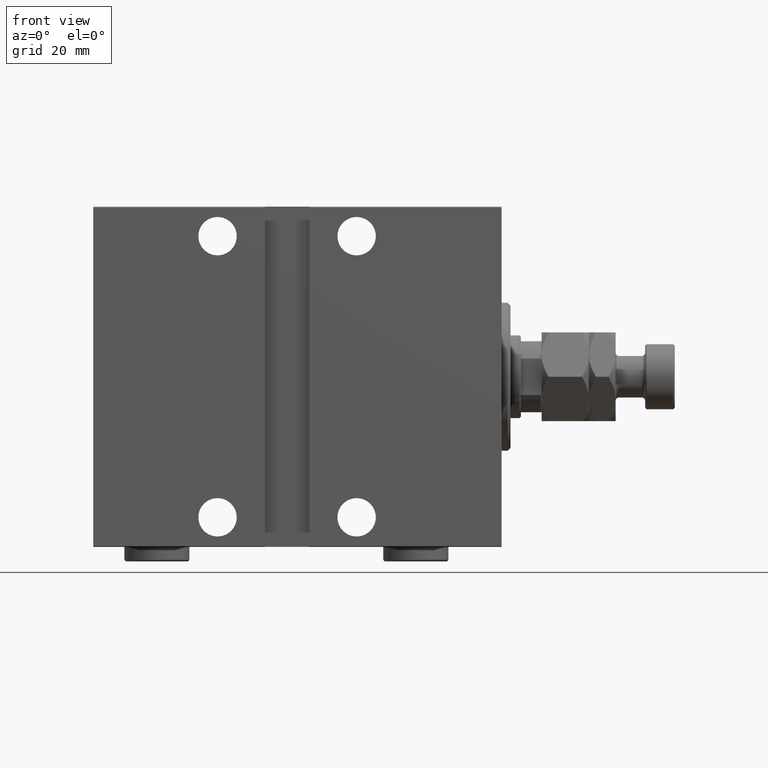
[diagram: clean part render]
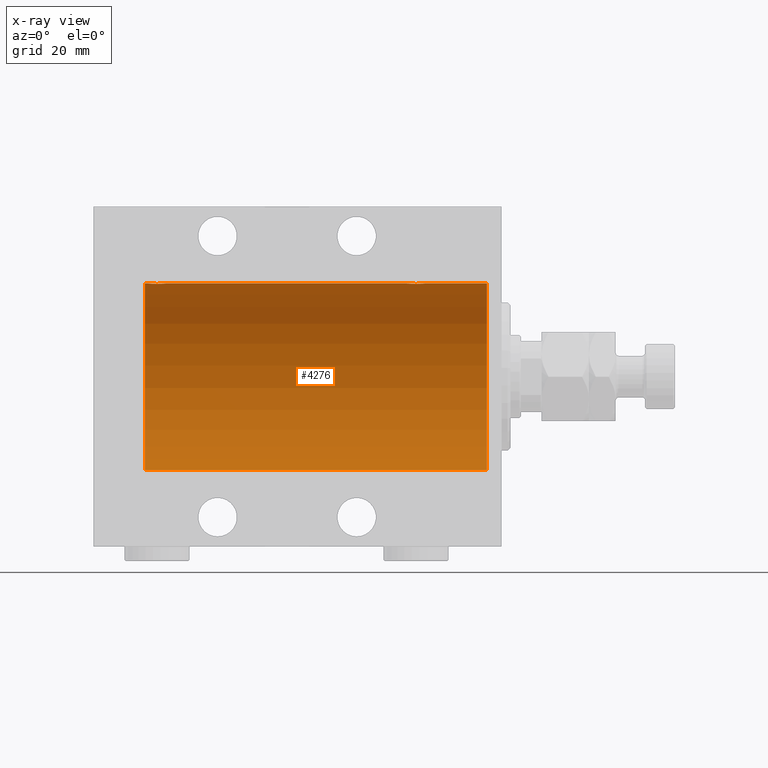
[diagram: x-ray — body ghosted, one internal face saturated and labeled with its STEP entity id]
A machine part, front view, then the same camera in x-ray: the body is ghosted and one INTERNAL B-rep face — a face not visible from any outside direction — is saturated and labeled: STEP entity #4276.
In plain terms, the highlighted cylindrical surface (partial cylindrical patch) has radius 31.5 mm, axis along (1, 0, -0).
Its self-contained STEP definition (entity closure, byte-faithful):
#874 = CARTESIAN_POINT ( 'NONE',  ( 120.5000000000000000, 3.857637417314162689E-15, -31.50000000000000000 ) ) ;
#1224 = CARTESIAN_POINT ( 'NONE',  ( 118.4814346287304687, -2.261012035264788445, 31.41905495618427935 ) ) ;
#1467 = CARTESIAN_POINT ( 'NONE',  ( 118.0009815629614849, -2.604888532024803194, 31.39229907792057972 ) ) ;
#1693 = CARTESIAN_POINT ( 'NONE',  ( 119.1019214043915895, -1.506272792558331464, 31.46439306106695710 ) ) ;
#1937 = CARTESIAN_POINT ( 'NONE',  ( 113.5000000000000284, -0.1958045626907475578, 31.50000000000000000 ) ) ;
#2501 = CARTESIAN_POINT ( 'NONE',  ( 26.30285761163299441, -1.328004386210307919, 31.47251238182140298 ) ) ;
#2833 = LINE ( 'NONE', #27963, #26604 ) ;
#2972 = CARTESIAN_POINT ( 'NONE',  ( 30.32865414687508832, -2.696917666262911961, 31.38442820068732075 ) ) ;
#3433 = CARTESIAN_POINT ( 'NONE',  ( 26.00000000000000355, -0.1958045626907478631, 31.50000000000000000 ) ) ;
#4080 = CARTESIAN_POINT ( 'NONE',  ( 26.00000000000000355, -2.117263226567934635E-23, 31.50000000000000000 ) ) ;
#4127 = CARTESIAN_POINT ( 'NONE',  ( 120.5000000000000000, 0.000000000000000000, 31.50000000000000000 ) ) ;
#4192 = CARTESIAN_POINT ( 'NONE',  ( 120.5000000000000000, 0.000000000000000000, 0.000000000000000000 ) ) ;
#4276 = ADVANCED_FACE ( 'NONE', ( #20348 ), #12448, .F. ) ;
#4513 = ORIENTED_EDGE ( 'NONE', *, *, #15030, .F. ) ;
#4722 = CARTESIAN_POINT ( 'NONE',  ( 117.8286541468751238, -2.696917666262918623, 31.38442820068732075 ) ) ;
#4948 = CARTESIAN_POINT ( 'NONE',  ( 114.6695630851300081, -2.384935707362453527, 31.40977595730572958 ) ) ;
#5190 = CARTESIAN_POINT ( 'NONE',  ( 116.6958229443943935, -3.000152387858501690, 31.35680286115500337 ) ) ;
#5420 = CARTESIAN_POINT ( 'NONE',  ( 118.8824687226663457, -1.833765390051049549, 31.44700610425690002 ) ) ;
#5437 = ORIENTED_EDGE ( 'NONE', *, *, #38143, .F. ) ;
#5664 = CARTESIAN_POINT ( 'NONE',  ( 113.5958054926194336, -0.7775502215293890185, 31.49099686045558144 ) ) ;
#6232 = CARTESIAN_POINT ( 'NONE',  ( 29.19582294439440062, -3.000152387858491476, 31.35680286115500337 ) ) ;
#6343 = VERTEX_POINT ( 'NONE', #19599 ) ;
#6456 = CARTESIAN_POINT ( 'NONE',  ( 26.01898490608483527, -0.3904857149112059278, 31.49817436802766224 ) ) ;
#6702 = CARTESIAN_POINT ( 'NONE',  ( 29.96515729810639783, -2.847307171789040581, 31.37114183851420890 ) ) ;
#6929 = CARTESIAN_POINT ( 'NONE',  ( 32.00000000000000000, -0.3965830985361757932, 31.50000000000000711 ) ) ;
#7260 = DIRECTION ( 'NONE',  ( -1.000000000000000000, -0.000000000000000000, -0.000000000000000000 ) ) ;
#7789 = EDGE_CURVE ( 'NONE', #35003, #6343, #32323, .T. ) ;
#8006 = AXIS2_PLACEMENT_3D ( 'NONE', #4192, #28431, #21211 ) ;
#8224 = CARTESIAN_POINT ( 'NONE',  ( 115.1676004190084086, -2.695056442718549050, 31.38458855656186941 ) ) ;
#8447 = CARTESIAN_POINT ( 'NONE',  ( 119.5000000000000284, 3.986776180743416568E-16, 31.50000000000000000 ) ) ;
#8722 = CIRCLE ( 'NONE', #8006, 31.50000000000000000 ) ;
#8882 = CARTESIAN_POINT ( 'NONE',  ( 32.00000000000000000, -2.212280765433387153E-16, 31.50000000000000000 ) ) ;
#8939 = VECTOR ( 'NONE', #11144, 1000.000000000000000 ) ;
#9144 = CARTESIAN_POINT ( 'NONE',  ( 119.1952964235901646, -1.331741824817668673, 31.47235367475394341 ) ) ;
#9181 = CARTESIAN_POINT ( 'NONE',  ( 120.5000000000000000, 0.000000000000000000, 0.000000000000000000 ) ) ;
#9736 = CARTESIAN_POINT ( 'NONE',  ( 27.01539640075336379, -2.258226318633789642, 31.41925597582827123 ) ) ;
#9810 = CARTESIAN_POINT ( 'NONE',  ( 120.5000000000000000, 0.000000000000000000, 31.50000000000000000 ) ) ;
#9907 = DIRECTION ( 'NONE',  ( -1.000000000000000000, -0.000000000000000000, -0.000000000000000000 ) ) ;
#10133 = CARTESIAN_POINT ( 'NONE',  ( 120.5000000000000000, 3.857637417314162689E-15, -31.50000000000000000 ) ) ;
#10187 = CARTESIAN_POINT ( 'NONE',  ( 28.03055544341478367, -2.845838211243338023, 31.37127560316188024 ) ) ;
#10434 = CARTESIAN_POINT ( 'NONE',  ( 31.92020662950041654, -0.7905881588836122242, 31.49214662150069088 ) ) ;
#11144 = DIRECTION ( 'NONE',  ( -1.000000000000000000, -0.000000000000000000, -0.000000000000000000 ) ) ;
#11685 = VERTEX_POINT ( 'NONE', #14129 ) ;
#12448 = CYLINDRICAL_SURFACE ( 'NONE', #16930, 31.50000000000000000 ) ;
#13940 = CARTESIAN_POINT ( 'NONE',  ( 29.77469094434372465, -2.904836261170110845, 31.36579955910872997 ) ) ;
#14129 = CARTESIAN_POINT ( 'NONE',  ( 5.000000000000004441, 0.000000000000000000, 31.50000000000000000 ) ) ;
#14443 = B_SPLINE_CURVE_WITH_KNOTS ( 'NONE', 3,
 ( #38240, #1937, #37572, #5664, #19877, #26589, #30091, #37097, #15456, #36851, #4948, #40570, #8224, #29646, #44534, #29872, #44301, #5190, #43854, #36631, #33378, #4722, #1467, #34063, #1224, #19410, #5420, #1693, #9144, #40813, #43609, #8447 ),
 .UNSPECIFIED., .F., .F.,
 ( 4, 2, 2, 2, 2, 2, 2, 2, 2, 2, 2, 2, 2, 2, 2, 4 ),
 ( 0.009384682587134656959, 0.009971088165454059654, 0.01055749374377346235, 0.01114389932209286505, 0.01173030490041226774, 0.01231671047873167044, 0.01290311605705107487, 0.01348952163537047583, 0.01407592721368988026, 0.01466233279200928122, 0.01524873837032868565, 0.01583514394864808661, 0.01642154952696749104, 0.01700795510528689200, 0.01759436068360629296, 0.01876717184024508447 ),
 .UNSPECIFIED. ) ;
#14477 = CARTESIAN_POINT ( 'NONE',  ( 119.5000000000000284, 3.986776180743416568E-16, 31.50000000000000000 ) ) ;
#14690 = CARTESIAN_POINT ( 'NONE',  ( 113.5000000000000142, -2.116947682205846230E-23, 31.50000000000000000 ) ) ;
#15030 = EDGE_CURVE ( 'NONE', #23569, #20806, #17041, .T. ) ;
#15199 = EDGE_CURVE ( 'NONE', #35003, #35915, #8722, .T. ) ;
#15435 = AXIS2_PLACEMENT_3D ( 'NONE', #27596, #27366, #24102 ) ;
#15456 = CARTESIAN_POINT ( 'NONE',  ( 114.2390453754387210, -1.981494824113336550, 31.43792153503157394 ) ) ;
#16311 = EDGE_LOOP ( 'NONE', ( #33738, #45500, #24081, #29584, #41481, #4513, #42613, #5437 ) ) ;
#16930 = AXIS2_PLACEMENT_3D ( 'NONE', #9181, #26637, #34109 ) ;
#17041 = LINE ( 'NONE', #9810, #33271 ) ;
#17195 = CARTESIAN_POINT ( 'NONE',  ( 26.73904537543871029, -1.981494824113332998, 31.43792153503156683 ) ) ;
#17564 = EDGE_CURVE ( 'NONE', #38944, #11685, #27595, .T. ) ;
#17663 = CARTESIAN_POINT ( 'NONE',  ( 28.60465888999905815, -2.980257240990060286, 31.35872356503798031 ) ) ;
#19210 = VECTOR ( 'NONE', #9907, 1000.000000000000000 ) ;
#19410 = CARTESIAN_POINT ( 'NONE',  ( 118.7582450190326995, -1.984587626072078281, 31.43772577203671048 ) ) ;
#19503 = EDGE_CURVE ( 'NONE', #23569, #28469, #14443, .T. ) ;
#19594 = CARTESIAN_POINT ( 'NONE',  ( 28.79953541025905395, -2.999845816735302151, 31.35683219171744796 ) ) ;
#19599 = CARTESIAN_POINT ( 'NONE',  ( 5.000000000000004441, 3.857637417314162689E-15, -31.50000000000000000 ) ) ;
#19877 = CARTESIAN_POINT ( 'NONE',  ( 113.6533953625750257, -0.9669616078782038437, 31.48567319468627446 ) ) ;
#20071 = DIRECTION ( 'NONE',  ( -1.000000000000000000, -0.000000000000000000, -0.000000000000000000 ) ) ;
#20348 = FACE_OUTER_BOUND ( 'NONE', #16311, .T. ) ;
#20440 = CARTESIAN_POINT ( 'NONE',  ( 31.60192140439154684, -1.506272792558327467, 31.46439306106696421 ) ) ;
#20806 = VERTEX_POINT ( 'NONE', #25854 ) ;
#21211 = DIRECTION ( 'NONE',  ( 0.000000000000000000, 0.000000000000000000, 1.000000000000000000 ) ) ;
#23087 = CARTESIAN_POINT ( 'NONE',  ( 29.39114547339941907, -2.980809450819707163, 31.35867074198615967 ) ) ;
#23569 = VERTEX_POINT ( 'NONE', #14690 ) ;
#23932 = CARTESIAN_POINT ( 'NONE',  ( 28.22118087357679528, -2.903733559410688336, 31.36590199989304395 ) ) ;
#24081 = ORIENTED_EDGE ( 'NONE', *, *, #34942, .T. ) ;
#24102 = DIRECTION ( 'NONE',  ( 0.000000000000000000, 0.000000000000000000, 1.000000000000000000 ) ) ;
#24386 = CARTESIAN_POINT ( 'NONE',  ( 31.25824501903267461, -1.984587626072075617, 31.43772577203673180 ) ) ;
#25854 = CARTESIAN_POINT ( 'NONE',  ( 32.00000000000000000, -2.212280765433387153E-16, 31.50000000000000000 ) ) ;
#26589 = CARTESIAN_POINT ( 'NONE',  ( 113.8028576116330299, -1.328004386210312138, 31.47251238182140298 ) ) ;
#26604 = VECTOR ( 'NONE', #7260, 1000.000000000000000 ) ;
#26637 = DIRECTION ( 'NONE',  ( -1.000000000000000000, -0.000000000000000000, -0.000000000000000000 ) ) ;
#27366 = DIRECTION ( 'NONE',  ( -1.000000000000000000, 0.000000000000000000, 0.000000000000000000 ) ) ;
#27595 = LINE ( 'NONE', #41798, #19210 ) ;
#27596 = CARTESIAN_POINT ( 'NONE',  ( 5.000000000000004441, 0.000000000000000000, 0.000000000000000000 ) ) ;
#27643 = CARTESIAN_POINT ( 'NONE',  ( 26.00000000000000355, -2.117263226567934635E-23, 31.50000000000000000 ) ) ;
#27963 = CARTESIAN_POINT ( 'NONE',  ( 120.5000000000000000, 0.000000000000000000, 31.50000000000000000 ) ) ;
#28114 = CARTESIAN_POINT ( 'NONE',  ( 31.69529642359011135, -1.331741824817660236, 31.47235367475394341 ) ) ;
#28431 = DIRECTION ( 'NONE',  ( -1.000000000000000000, 0.000000000000000000, 0.000000000000000000 ) ) ;
#28469 = VERTEX_POINT ( 'NONE', #14477 ) ;
#28601 = B_SPLINE_CURVE_WITH_KNOTS ( 'NONE', 3,
 ( #27643, #3433, #6456, #45580, #42322, #2501, #46057, #34891, #17195, #9736, #45808, #31615, #38827, #10187, #23932, #17663, #19594, #6232, #23087, #13940, #6702, #2972, #41620, #31389, #40780, #24386, #38594, #20440, #28114, #10434, #6929, #8882 ),
 .UNSPECIFIED., .F., .F.,
 ( 4, 2, 2, 2, 2, 2, 2, 2, 2, 2, 2, 2, 2, 2, 2, 4 ),
 ( 0.009384682587134636142, 0.009971088165454035368, 0.01055749374377343633, 0.01114389932209283729, 0.01173030490041223652, 0.01231671047873163748, 0.01290311605705103844, 0.01348952163537044113, 0.01407592721368984209, 0.01466233279200924305, 0.01524873837032864402, 0.01583514394864804498, 0.01642154952696744594, 0.01700795510528684690, 0.01759436068360624786, 0.01876717184024504284 ),
 .UNSPECIFIED. ) ;
#29584 = ORIENTED_EDGE ( 'NONE', *, *, #17564, .F. ) ;
#29646 = CARTESIAN_POINT ( 'NONE',  ( 115.5305554434147695, -2.845838211243347793, 31.37127560316186603 ) ) ;
#29872 = CARTESIAN_POINT ( 'NONE',  ( 116.1046588899990724, -2.980257240990072276, 31.35872356503798031 ) ) ;
#30091 = CARTESIAN_POINT ( 'NONE',  ( 113.8958221872526906, -1.502389880413007806, 31.46458023642405166 ) ) ;
#31389 = CARTESIAN_POINT ( 'NONE',  ( 30.82704225370269668, -2.387531469909775605, 31.40957782495775419 ) ) ;
#31615 = CARTESIAN_POINT ( 'NONE',  ( 27.49543714993000521, -2.602826974226399859, 31.39247100434484850 ) ) ;
#32323 = LINE ( 'NONE', #874, #8939 ) ;
#32512 = EDGE_CURVE ( 'NONE', #38944, #20806, #28601, .T. ) ;
#33271 = VECTOR ( 'NONE', #20071, 1000.000000000000000 ) ;
#33378 = CARTESIAN_POINT ( 'NONE',  ( 117.4651572981064049, -2.847307171789049018, 31.37114183851420179 ) ) ;
#33738 = ORIENTED_EDGE ( 'NONE', *, *, #15199, .F. ) ;
#34063 = CARTESIAN_POINT ( 'NONE',  ( 118.3270422537027287, -2.387531469909783599, 31.40957782495775419 ) ) ;
#34109 = DIRECTION ( 'NONE',  ( 0.000000000000000000, 0.000000000000000000, 1.000000000000000000 ) ) ;
#34891 = CARTESIAN_POINT ( 'NONE',  ( 26.61498557723073333, -1.830470878313879668, 31.44719957596828763 ) ) ;
#34942 = EDGE_CURVE ( 'NONE', #6343, #11685, #42153, .T. ) ;
#35003 = VERTEX_POINT ( 'NONE', #10133 ) ;
#35915 = VERTEX_POINT ( 'NONE', #4127 ) ;
#36631 = CARTESIAN_POINT ( 'NONE',  ( 117.2746909443437602, -2.904836261170119283, 31.36579955910872997 ) ) ;
#36851 = CARTESIAN_POINT ( 'NONE',  ( 114.5153964007533745, -2.258226318633794083, 31.41925597582825702 ) ) ;
#37097 = CARTESIAN_POINT ( 'NONE',  ( 114.1149855772307689, -1.830470878313888772, 31.44719957596829474 ) ) ;
#37572 = CARTESIAN_POINT ( 'NONE',  ( 113.5189849060848672, -0.3904857149112057613, 31.49817436802766935 ) ) ;
#38143 = EDGE_CURVE ( 'NONE', #35915, #28469, #2833, .T. ) ;
#38240 = CARTESIAN_POINT ( 'NONE',  ( 113.5000000000000142, -2.116947682205846230E-23, 31.50000000000000000 ) ) ;
#38594 = CARTESIAN_POINT ( 'NONE',  ( 31.38246872266632082, -1.833765390051044220, 31.44700610425690712 ) ) ;
#38827 = CARTESIAN_POINT ( 'NONE',  ( 27.66760041900836242, -2.695056442718537060, 31.38458855656185875 ) ) ;
#38944 = VERTEX_POINT ( 'NONE', #4080 ) ;
#40570 = CARTESIAN_POINT ( 'NONE',  ( 114.9954371499299981, -2.602826974226411849, 31.39247100434485560 ) ) ;
#40780 = CARTESIAN_POINT ( 'NONE',  ( 30.98143462873041543, -2.261012035264784004, 31.41905495618427935 ) ) ;
#40813 = CARTESIAN_POINT ( 'NONE',  ( 119.4202066295004840, -0.7905881588836197738, 31.49214662150070509 ) ) ;
#41481 = ORIENTED_EDGE ( 'NONE', *, *, #32512, .T. ) ;
#41620 = CARTESIAN_POINT ( 'NONE',  ( 30.50098156296147422, -2.604888532024794312, 31.39229907792057972 ) ) ;
#41798 = CARTESIAN_POINT ( 'NONE',  ( 120.5000000000000000, 0.000000000000000000, 31.50000000000000000 ) ) ;
#42153 = CIRCLE ( 'NONE', #15435, 31.50000000000000000 ) ;
#42322 = CARTESIAN_POINT ( 'NONE',  ( 26.15339536257502218, -0.9669616078782009572, 31.48567319468626735 ) ) ;
#42613 = ORIENTED_EDGE ( 'NONE', *, *, #19503, .T. ) ;
#43609 = CARTESIAN_POINT ( 'NONE',  ( 119.5000000000000426, -0.3965830985361756822, 31.50000000000000711 ) ) ;
#43854 = CARTESIAN_POINT ( 'NONE',  ( 116.8911454733994333, -2.980809450819716044, 31.35867074198615256 ) ) ;
#44301 = CARTESIAN_POINT ( 'NONE',  ( 116.2995354102590682, -2.999845816735311921, 31.35683219171744796 ) ) ;
#44534 = CARTESIAN_POINT ( 'NONE',  ( 115.7211808735767846, -2.903733559410701215, 31.36590199989303684 ) ) ;
#45500 = ORIENTED_EDGE ( 'NONE', *, *, #7789, .T. ) ;
#45580 = CARTESIAN_POINT ( 'NONE',  ( 26.09580549261944071, -0.7775502215293879082, 31.49099686045559565 ) ) ;
#45808 = CARTESIAN_POINT ( 'NONE',  ( 27.16956308512997964, -2.384935707362441537, 31.40977595730572958 ) ) ;
#46057 = CARTESIAN_POINT ( 'NONE',  ( 26.39582218725271190, -1.502389880413000922, 31.46458023642405166 ) ) ;